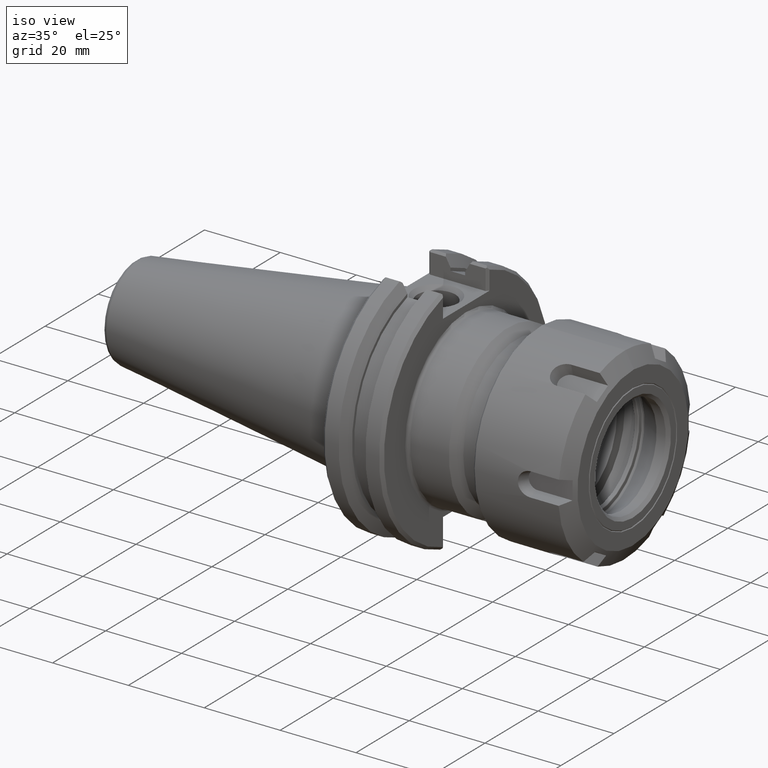
[diagram: clean part render]
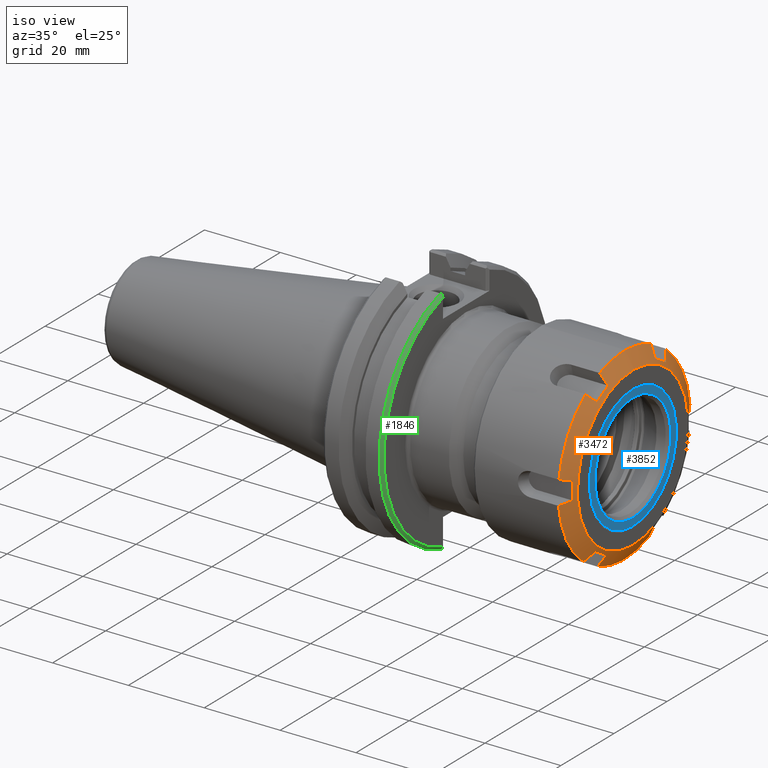
[diagram: same view with three faces highlighted in distinct colors, each labeled with its STEP entity id]
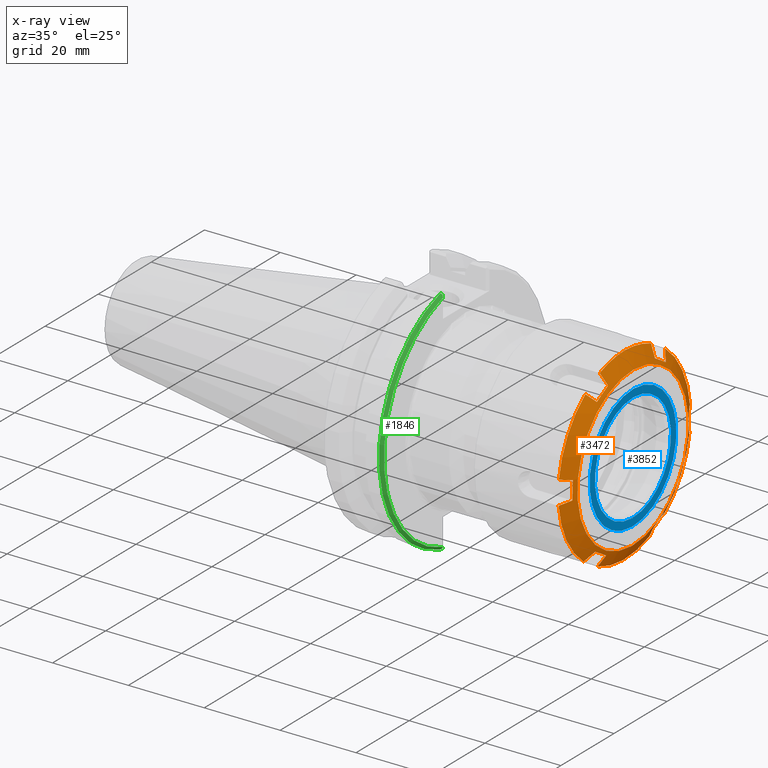
[diagram: x-ray of the same camera — body ghosted, the three highlighted faces saturated]
A machine part, iso view with three faces highlighted in distinct colors.
The next image is the same camera in x-ray (body ghosted, the three faces saturated) — at least one of them is partly hidden behind the body in this view.
Their STEP definitions:

[orange] entity #3472 — the highlighted conical surface has half-angle 60 deg.
#2420=CARTESIAN_POINT('',(0.024252481057824,0.791781847254617,-0.348593612044263));
#2421=VERTEX_POINT('',#2420);
#2422=CARTESIAN_POINT('',(0.024252481057824,0.697781847254617,-0.511406387955738));
#2423=VERTEX_POINT('',#2422);
#2424=CARTESIAN_POINT('',(0.024252481057824,0.791781847254617,-0.348593612044263));
#2425=CARTESIAN_POINT('',(0.018355662766565,0.744781847254617,-0.43));
#2426=CARTESIAN_POINT('',(0.024252481057824,0.697781847254617,-0.511406387955738));
#2434=(BOUNDED_CURVE()B_SPLINE_CURVE(2,(#2424,#2425,#2426),.UNSPECIFIED.,.F.,.U.)B_SPLINE_CURVE_WITH_KNOTS((3,3),(0.943718480474019,1.458220984319659),.UNSPECIFIED.)CURVE()GEOMETRIC_REPRESENTATION_ITEM()RATIONAL_B_SPLINE_CURVE((1.066011589984009,1.072360503039249,1.066011589984008))REPRESENTATION_ITEM(''));
#2435=EDGE_CURVE('',#2421,#2423,#2434,.T.);
#2468=CARTESIAN_POINT('',(0.09,0.78036723379402,-0.591158168699942));
#2469=VERTEX_POINT('',#2468);
#2470=CARTESIAN_POINT('',(0.024252481057824,0.697781847254617,-0.511406387955737));
#2471=CARTESIAN_POINT('',(0.05506296147415,0.73652463806791,-0.548819866148833));
#2472=CARTESIAN_POINT('',(0.09,0.78036723379402,-0.591158168699942));
#2480=(BOUNDED_CURVE()B_SPLINE_CURVE(2,(#2470,#2471,#2472),.UNSPECIFIED.,.F.,.U.)B_SPLINE_CURVE_WITH_KNOTS((3,3),(0.0,0.336043340882399),.UNSPECIFIED.)CURVE()GEOMETRIC_REPRESENTATION_ITEM()RATIONAL_B_SPLINE_CURVE((1.0,1.001943540660479,1.0))REPRESENTATION_ITEM(''));
#2481=EDGE_CURVE('',#2423,#2469,#2480,.T.);
#2545=CARTESIAN_POINT('',(0.09,0.902141608645846,-0.380238764396641));
#2546=VERTEX_POINT('',#2545);
#2547=CARTESIAN_POINT('',(0.09,0.902141608645847,-0.380238764396641));
#2548=CARTESIAN_POINT('',(0.055062961473286,0.843554265218969,-0.363439114005117));
#2549=CARTESIAN_POINT('',(0.024252481057824,0.791781847254617,-0.348593612044263));
#2557=(BOUNDED_CURVE()B_SPLINE_CURVE(2,(#2547,#2548,#2549),.UNSPECIFIED.,.F.,.U.)B_SPLINE_CURVE_WITH_KNOTS((3,3),(0.0,0.336043340882399),.UNSPECIFIED.)CURVE()GEOMETRIC_REPRESENTATION_ITEM()RATIONAL_B_SPLINE_CURVE((1.0,1.001943540653427,1.0))REPRESENTATION_ITEM(''));
#2558=EDGE_CURVE('',#2546,#2421,#2557,.T.);
#2576=CARTESIAN_POINT('',(0.024252481057824,0.094,-0.86));
#2577=VERTEX_POINT('',#2576);
#2578=CARTESIAN_POINT('',(0.024252481057824,-0.094,-0.86));
#2579=VERTEX_POINT('',#2578);
#2580=CARTESIAN_POINT('',(0.024252481057824,0.094,-0.86));
#2581=CARTESIAN_POINT('',(0.018355662766565,-1.202013E-016,-0.86));
#2582=CARTESIAN_POINT('',(0.024252481057824,-0.094,-0.86));
#2590=(BOUNDED_CURVE()B_SPLINE_CURVE(2,(#2580,#2581,#2582),.UNSPECIFIED.,.F.,.U.)B_SPLINE_CURVE_WITH_KNOTS((3,3),(0.943718480474019,1.45822098431966),.UNSPECIFIED.)CURVE()GEOMETRIC_REPRESENTATION_ITEM()RATIONAL_B_SPLINE_CURVE((1.066011589984008,1.072360503039249,1.066011589984008))REPRESENTATION_ITEM(''));
#2591=EDGE_CURVE('',#2577,#2579,#2590,.T.);
#2624=CARTESIAN_POINT('',(0.09,-0.121774374851827,-0.971396933096583));
#2625=VERTEX_POINT('',#2624);
#2626=CARTESIAN_POINT('',(0.024252481057824,-0.094,-0.86));
#2627=CARTESIAN_POINT('',(0.055062961466432,-0.107029627149249,-0.912258980141287));
#2628=CARTESIAN_POINT('',(0.09,-0.121774374851827,-0.971396933096583));
#2636=(BOUNDED_CURVE()B_SPLINE_CURVE(2,(#2626,#2627,#2628),.UNSPECIFIED.,.F.,.U.)B_SPLINE_CURVE_WITH_KNOTS((3,3),(0.0,0.336043340882399),.UNSPECIFIED.)CURVE()GEOMETRIC_REPRESENTATION_ITEM()RATIONAL_B_SPLINE_CURVE((1.0,1.001943540649777,1.0))REPRESENTATION_ITEM(''));
#2637=EDGE_CURVE('',#2579,#2625,#2636,.T.);
#2701=CARTESIAN_POINT('',(0.09,0.121774374851826,-0.971396933096583));
#2702=VERTEX_POINT('',#2701);
#2703=CARTESIAN_POINT('',(0.09,0.121774374851826,-0.971396933096583));
#2704=CARTESIAN_POINT('',(0.055062961477335,0.107029627153855,-0.912258980159763));
#2705=CARTESIAN_POINT('',(0.024252481057824,0.094,-0.86));
#2713=(BOUNDED_CURVE()B_SPLINE_CURVE(2,(#2703,#2704,#2705),.UNSPECIFIED.,.F.,.U.)B_SPLINE_CURVE_WITH_KNOTS((3,3),(0.0,0.336043340882399),.UNSPECIFIED.)CURVE()GEOMETRIC_REPRESENTATION_ITEM()RATIONAL_B_SPLINE_CURVE((1.0,1.001943540613379,1.0))REPRESENTATION_ITEM(''));
#2714=EDGE_CURVE('',#2702,#2577,#2713,.T.);
#2732=CARTESIAN_POINT('',(0.024252481057824,-0.697781847254617,-0.511406387955737));
#2733=VERTEX_POINT('',#2732);
#2734=CARTESIAN_POINT('',(0.024252481057824,-0.791781847254618,-0.348593612044263));
#2735=VERTEX_POINT('',#2734);
#2736=CARTESIAN_POINT('',(0.024252481057824,-0.697781847254617,-0.511406387955737));
#2737=CARTESIAN_POINT('',(0.018355662766565,-0.744781847254617,-0.43));
#2738=CARTESIAN_POINT('',(0.024252481057824,-0.791781847254618,-0.348593612044263));
#2746=(BOUNDED_CURVE()B_SPLINE_CURVE(2,(#2736,#2737,#2738),.UNSPECIFIED.,.F.,.U.)B_SPLINE_CURVE_WITH_KNOTS((3,3),(0.94371848047402,1.45822098431966),.UNSPECIFIED.)CURVE()GEOMETRIC_REPRESENTATION_ITEM()RATIONAL_B_SPLINE_CURVE((1.066011589984008,1.072360503039249,1.066011589984008))REPRESENTATION_ITEM(''));
#2747=EDGE_CURVE('',#2733,#2735,#2746,.T.);
#2780=CARTESIAN_POINT('',(0.09,-0.902141608645847,-0.380238764396641));
#2781=VERTEX_POINT('',#2780);
#2782=CARTESIAN_POINT('',(0.024252481057824,-0.791781847254618,-0.348593612044263));
#2783=CARTESIAN_POINT('',(0.055062961460595,-0.843554265197666,-0.363439113999008));
#2784=CARTESIAN_POINT('',(0.09,-0.902141608645847,-0.380238764396641));
#2792=(BOUNDED_CURVE()B_SPLINE_CURVE(2,(#2782,#2783,#2784),.UNSPECIFIED.,.F.,.U.)B_SPLINE_CURVE_WITH_KNOTS((3,3),(0.0,0.336043340882399),.UNSPECIFIED.)CURVE()GEOMETRIC_REPRESENTATION_ITEM()RATIONAL_B_SPLINE_CURVE((1.0,1.001943540685767,1.0))REPRESENTATION_ITEM(''));
#2793=EDGE_CURVE('',#2735,#2781,#2792,.T.);
#2857=CARTESIAN_POINT('',(0.09,-0.78036723379402,-0.591158168699942));
#2858=VERTEX_POINT('',#2857);
#2859=CARTESIAN_POINT('',(0.09,-0.780367233794021,-0.591158168699942));
#2860=CARTESIAN_POINT('',(0.055062961471766,-0.736524638064915,-0.54881986614594));
#2861=CARTESIAN_POINT('',(0.024252481057824,-0.697781847254618,-0.511406387955737));
#2869=(BOUNDED_CURVE()B_SPLINE_CURVE(2,(#2859,#2860,#2861),.UNSPECIFIED.,.F.,.U.)B_SPLINE_CURVE_WITH_KNOTS((3,3),(0.0,0.336043340882399),.UNSPECIFIED.)CURVE()GEOMETRIC_REPRESENTATION_ITEM()RATIONAL_B_SPLINE_CURVE((1.0,1.001943540646954,1.0))REPRESENTATION_ITEM(''));
#2870=EDGE_CURVE('',#2858,#2733,#2869,.T.);
#2888=CARTESIAN_POINT('',(0.024252481057824,-0.791781847254617,0.348593612044263));
#2889=VERTEX_POINT('',#2888);
#2890=CARTESIAN_POINT('',(0.024252481057824,-0.697781847254617,0.511406387955737));
#2891=VERTEX_POINT('',#2890);
#2892=CARTESIAN_POINT('',(0.024252481057824,-0.791781847254617,0.348593612044263));
#2893=CARTESIAN_POINT('',(0.018355662766565,-0.744781847254617,0.43));
#2894=CARTESIAN_POINT('',(0.024252481057824,-0.697781847254617,0.511406387955737));
#2902=(BOUNDED_CURVE()B_SPLINE_CURVE(2,(#2892,#2893,#2894),.UNSPECIFIED.,.F.,.U.)B_SPLINE_CURVE_WITH_KNOTS((3,3),(0.943718480474019,1.458220984319659),.UNSPECIFIED.)CURVE()GEOMETRIC_REPRESENTATION_ITEM()RATIONAL_B_SPLINE_CURVE((1.066011589984008,1.072360503039248,1.066011589984008))REPRESENTATION_ITEM(''));
#2903=EDGE_CURVE('',#2889,#2891,#2902,.T.);
#2936=CARTESIAN_POINT('',(0.09,-0.78036723379402,0.591158168699942));
#2937=VERTEX_POINT('',#2936);
#2938=CARTESIAN_POINT('',(0.024252481057824,-0.697781847254617,0.511406387955737));
#2939=CARTESIAN_POINT('',(0.0550629614682,-0.736524638060436,0.548819866141615));
#2940=CARTESIAN_POINT('',(0.09,-0.78036723379402,0.591158168699942));
#2948=(BOUNDED_CURVE()B_SPLINE_CURVE(2,(#2938,#2939,#2940),.UNSPECIFIED.,.F.,.U.)B_SPLINE_CURVE_WITH_KNOTS((3,3),(0.0,0.336043340882399),.UNSPECIFIED.)CURVE()GEOMETRIC_REPRESENTATION_ITEM()RATIONAL_B_SPLINE_CURVE((1.0,1.001943540656767,1.0))REPRESENTATION_ITEM(''));
#2949=EDGE_CURVE('',#2891,#2937,#2948,.T.);
#3013=CARTESIAN_POINT('',(0.09,-0.902141608645847,0.380238764396641));
#3014=VERTEX_POINT('',#3013);
#3015=CARTESIAN_POINT('',(0.09,-0.902141608645847,0.380238764396641));
#3016=CARTESIAN_POINT('',(0.055062961464766,-0.843554265204668,0.363439114001016));
#3017=CARTESIAN_POINT('',(0.024252481057824,-0.791781847254617,0.348593612044263));
#3025=(BOUNDED_CURVE()B_SPLINE_CURVE(2,(#3015,#3016,#3017),.UNSPECIFIED.,.F.,.U.)B_SPLINE_CURVE_WITH_KNOTS((3,3),(0.0,0.336043340882399),.UNSPECIFIED.)CURVE()GEOMETRIC_REPRESENTATION_ITEM()RATIONAL_B_SPLINE_CURVE((1.0,1.001943540699981,1.0))REPRESENTATION_ITEM(''));
#3026=EDGE_CURVE('',#3014,#2889,#3025,.T.);
#3044=CARTESIAN_POINT('',(0.024252481057824,0.697781847254618,0.511406387955737));
#3045=VERTEX_POINT('',#3044);
#3046=CARTESIAN_POINT('',(0.024252481057824,0.791781847254618,0.348593612044262));
#3047=VERTEX_POINT('',#3046);
#3048=CARTESIAN_POINT('',(0.024252481057824,0.697781847254618,0.511406387955737));
#3049=CARTESIAN_POINT('',(0.018355662766565,0.744781847254618,0.43));
#3050=CARTESIAN_POINT('',(0.024252481057824,0.791781847254618,0.348593612044262));
#3058=(BOUNDED_CURVE()B_SPLINE_CURVE(2,(#3048,#3049,#3050),.UNSPECIFIED.,.F.,.U.)B_SPLINE_CURVE_WITH_KNOTS((3,3),(0.94371848047402,1.458220984319659),.UNSPECIFIED.)CURVE()GEOMETRIC_REPRESENTATION_ITEM()RATIONAL_B_SPLINE_CURVE((1.066011589984007,1.072360503039247,1.066011589984007))REPRESENTATION_ITEM(''));
#3059=EDGE_CURVE('',#3045,#3047,#3058,.T.);
#3092=CARTESIAN_POINT('',(0.09,0.902141608645847,0.38023876439664));
#3093=VERTEX_POINT('',#3092);
#3094=CARTESIAN_POINT('',(0.024252481057824,0.791781847254618,0.348593612044262));
#3095=CARTESIAN_POINT('',(0.05506296147389,0.843554265219982,0.363439114005407));
#3096=CARTESIAN_POINT('',(0.09,0.902141608645847,0.38023876439664));
#3104=(BOUNDED_CURVE()B_SPLINE_CURVE(2,(#3094,#3095,#3096),.UNSPECIFIED.,.F.,.U.)B_SPLINE_CURVE_WITH_KNOTS((3,3),(0.0,0.336043340882399),.UNSPECIFIED.)CURVE()GEOMETRIC_REPRESENTATION_ITEM()RATIONAL_B_SPLINE_CURVE((1.0,1.001943540664179,1.0))REPRESENTATION_ITEM(''));
#3105=EDGE_CURVE('',#3047,#3093,#3104,.T.);
#3169=CARTESIAN_POINT('',(0.09,0.780367233794021,0.591158168699941));
#3170=VERTEX_POINT('',#3169);
#3171=CARTESIAN_POINT('',(0.09,0.780367233794021,0.591158168699941));
#3172=CARTESIAN_POINT('',(0.055062961468214,0.736524638060454,0.548819866141632));
#3173=CARTESIAN_POINT('',(0.024252481057824,0.697781847254618,0.511406387955737));
#3181=(BOUNDED_CURVE()B_SPLINE_CURVE(2,(#3171,#3172,#3173),.UNSPECIFIED.,.F.,.U.)B_SPLINE_CURVE_WITH_KNOTS((3,3),(0.0,0.336043340882399),.UNSPECIFIED.)CURVE()GEOMETRIC_REPRESENTATION_ITEM()RATIONAL_B_SPLINE_CURVE((1.0,1.001943540675198,1.0))REPRESENTATION_ITEM(''));
#3182=EDGE_CURVE('',#3170,#3045,#3181,.T.);
#3214=CARTESIAN_POINT('',(0.09,0.0,0.0));
#3215=DIRECTION('',(1.0,0.0,0.0));
#3216=DIRECTION('',(0.0,1.0,0.0));
#3217=AXIS2_PLACEMENT_3D('',#3214,#3215,#3216);
#3218=CIRCLE('',#3217,0.979);
#3219=EDGE_CURVE('',#2546,#3093,#3218,.T.);
#3224=CARTESIAN_POINT('',(0.09,0.121774374851826,0.971396933096583));
#3225=VERTEX_POINT('',#3224);
#3226=CARTESIAN_POINT('',(0.09,0.0,0.0));
#3227=DIRECTION('',(1.0,0.0,0.0));
#3228=DIRECTION('',(0.0,1.0,0.0));
#3229=AXIS2_PLACEMENT_3D('',#3226,#3227,#3228);
#3230=CIRCLE('',#3229,0.979);
#3231=EDGE_CURVE('',#3170,#3225,#3230,.T.);
#3264=CARTESIAN_POINT('',(0.09,-0.121774374851826,0.971396933096583));
#3265=VERTEX_POINT('',#3264);
#3272=CARTESIAN_POINT('',(0.09,0.0,0.0));
#3273=DIRECTION('',(1.0,0.0,0.0));
#3274=DIRECTION('',(0.0,1.0,0.0));
#3275=AXIS2_PLACEMENT_3D('',#3272,#3273,#3274);
#3276=CIRCLE('',#3275,0.979);
#3277=EDGE_CURVE('',#3265,#2937,#3276,.T.);
#3282=CARTESIAN_POINT('',(0.09,0.0,0.0));
#3283=DIRECTION('',(1.0,0.0,0.0));
#3284=DIRECTION('',(0.0,1.0,0.0));
#3285=AXIS2_PLACEMENT_3D('',#3282,#3283,#3284);
#3286=CIRCLE('',#3285,0.979);
#3287=EDGE_CURVE('',#3014,#2781,#3286,.T.);
#3292=CARTESIAN_POINT('',(0.09,0.0,0.0));
#3293=DIRECTION('',(1.0,0.0,0.0));
#3294=DIRECTION('',(0.0,1.0,0.0));
#3295=AXIS2_PLACEMENT_3D('',#3292,#3293,#3294);
#3296=CIRCLE('',#3295,0.979);
#3297=EDGE_CURVE('',#2858,#2625,#3296,.T.);
#3302=CARTESIAN_POINT('',(0.09,0.0,0.0));
#3303=DIRECTION('',(1.0,0.0,0.0));
#3304=DIRECTION('',(0.0,1.0,0.0));
#3305=AXIS2_PLACEMENT_3D('',#3302,#3303,#3304);
#3306=CIRCLE('',#3305,0.979);
#3307=EDGE_CURVE('',#2702,#2469,#3306,.T.);
#3317=CARTESIAN_POINT('',(0.024252481057824,-0.094,0.86));
#3318=VERTEX_POINT('',#3317);
#3319=CARTESIAN_POINT('',(0.024252481057824,0.094,0.86));
#3320=VERTEX_POINT('',#3319);
#3321=CARTESIAN_POINT('',(0.024252481057824,-0.094,0.86));
#3322=CARTESIAN_POINT('',(0.018355662766565,0.0,0.86));
#3323=CARTESIAN_POINT('',(0.024252481057824,0.094,0.86));
#3331=(BOUNDED_CURVE()B_SPLINE_CURVE(2,(#3321,#3322,#3323),.UNSPECIFIED.,.F.,.U.)B_SPLINE_CURVE_WITH_KNOTS((3,3),(0.943718480474019,1.458220984319659),.UNSPECIFIED.)CURVE()GEOMETRIC_REPRESENTATION_ITEM()RATIONAL_B_SPLINE_CURVE((1.066011589984008,1.072360503039248,1.066011589984008))REPRESENTATION_ITEM(''));
#3332=EDGE_CURVE('',#3318,#3320,#3331,.T.);
#3365=CARTESIAN_POINT('',(0.024252481057824,0.094,0.86));
#3366=CARTESIAN_POINT('',(0.055062961472615,0.107029627151861,0.912258980151765));
#3367=CARTESIAN_POINT('',(0.09,0.121774374851826,0.971396933096583));
#3375=(BOUNDED_CURVE()B_SPLINE_CURVE(2,(#3365,#3366,#3367),.UNSPECIFIED.,.F.,.U.)B_SPLINE_CURVE_WITH_KNOTS((3,3),(0.13215054751189,0.460145776066875),.UNSPECIFIED.)CURVE()GEOMETRIC_REPRESENTATION_ITEM()RATIONAL_B_SPLINE_CURVE((1.001567099590146,1.002728305976245,1.0))REPRESENTATION_ITEM(''));
#3376=EDGE_CURVE('',#3320,#3225,#3375,.T.);
#3411=CARTESIAN_POINT('',(0.09,-0.121774374851826,0.971396933096583));
#3412=CARTESIAN_POINT('',(0.055062961472778,-0.10702962715193,0.912258980152042));
#3413=CARTESIAN_POINT('',(0.024252481057824,-0.094,0.86));
#3421=(BOUNDED_CURVE()B_SPLINE_CURVE(2,(#3411,#3412,#3413),.UNSPECIFIED.,.F.,.U.)B_SPLINE_CURVE_WITH_KNOTS((3,3),(0.0,0.327995228554664),.UNSPECIFIED.)CURVE()GEOMETRIC_REPRESENTATION_ITEM()RATIONAL_B_SPLINE_CURVE((1.0,1.002728305968636,1.001567099585778))REPRESENTATION_ITEM(''));
#3422=EDGE_CURVE('',#3265,#3318,#3421,.T.);
#3430=CARTESIAN_POINT('',(0.045,0.0,0.0));
#3431=DIRECTION('',(1.0,0.0,0.0));
#3432=DIRECTION('',(0.0,1.0,0.0));
#3433=AXIS2_PLACEMENT_3D('',#3430,#3431,#3432);
#3434=CONICAL_SURFACE('',#3433,0.901057713659401,60.000000000000043);
#3435=ORIENTED_EDGE('',*,*,#2481,.T.);
#3436=ORIENTED_EDGE('',*,*,#3307,.F.);
#3437=ORIENTED_EDGE('',*,*,#2714,.T.);
#3438=ORIENTED_EDGE('',*,*,#2591,.T.);
#3439=ORIENTED_EDGE('',*,*,#2637,.T.);
#3440=ORIENTED_EDGE('',*,*,#3297,.F.);
#3441=ORIENTED_EDGE('',*,*,#2870,.T.);
#3442=ORIENTED_EDGE('',*,*,#2747,.T.);
#3443=ORIENTED_EDGE('',*,*,#2793,.T.);
#3444=ORIENTED_EDGE('',*,*,#3287,.F.);
#3445=ORIENTED_EDGE('',*,*,#3026,.T.);
#3446=ORIENTED_EDGE('',*,*,#2903,.T.);
#3447=ORIENTED_EDGE('',*,*,#2949,.T.);
#3448=ORIENTED_EDGE('',*,*,#3277,.F.);
#3449=ORIENTED_EDGE('',*,*,#3422,.T.);
#3450=ORIENTED_EDGE('',*,*,#3332,.T.);
#3451=ORIENTED_EDGE('',*,*,#3376,.T.);
#3452=ORIENTED_EDGE('',*,*,#3231,.F.);
#3453=ORIENTED_EDGE('',*,*,#3182,.T.);
#3454=ORIENTED_EDGE('',*,*,#3059,.T.);
#3455=ORIENTED_EDGE('',*,*,#3105,.T.);
#3456=ORIENTED_EDGE('',*,*,#3219,.F.);
#3457=ORIENTED_EDGE('',*,*,#2558,.T.);
#3458=ORIENTED_EDGE('',*,*,#2435,.T.);
#3459=EDGE_LOOP('',(#3435,#3436,#3437,#3438,#3439,#3440,#3441,#3442,#3443,#3444,#3445,#3446,#3447,#3448,#3449,#3450,#3451,#3452,#3453,#3454,#3455,#3456,#3457,#3458));
#3460=FACE_OUTER_BOUND('',#3459,.T.);
#3461=CARTESIAN_POINT('',(-2.526959E-016,0.823115427318801,0.0));
#3462=VERTEX_POINT('',#3461);
#3463=CARTESIAN_POINT('',(-1.748383E-016,0.0,0.0));
#3464=DIRECTION('',(1.0,0.0,0.0));
#3465=DIRECTION('',(0.0,1.0,0.0));
#3466=AXIS2_PLACEMENT_3D('',#3463,#3464,#3465);
#3467=CIRCLE('',#3466,0.823115427318801);
#3468=EDGE_CURVE('',#3462,#3462,#3467,.T.);
#3469=ORIENTED_EDGE('',*,*,#3468,.T.);
#3470=EDGE_LOOP('',(#3469));
#3471=FACE_BOUND('',#3470,.T.);
#3472=ADVANCED_FACE('',(#3460,#3471),#3434,.T.);

[blue] entity #3852 — the highlighted planar face has unit normal (1, -0, 0).
#3818=CARTESIAN_POINT('',(-1.727894E-016,0.5635,0.0));
#3819=VERTEX_POINT('',#3818);
#3820=CARTESIAN_POINT('',(-1.748383E-016,0.0,0.0));
#3821=DIRECTION('',(1.0,0.0,0.0));
#3822=DIRECTION('',(0.0,1.0,0.0));
#3823=AXIS2_PLACEMENT_3D('',#3820,#3821,#3822);
#3824=CIRCLE('',#3823,0.5635);
#3825=EDGE_CURVE('',#3819,#3819,#3824,.T.);
#3833=CARTESIAN_POINT('',(-1.847412E-016,0.60325,0.0));
#3834=DIRECTION('',(-1.0,0.0,0.0));
#3835=DIRECTION('',(0.0,0.0,1.0));
#3836=AXIS2_PLACEMENT_3D('',#3833,#3834,#3835);
#3837=PLANE('',#3836);
#3838=CARTESIAN_POINT('',(-1.966931E-016,0.643,0.0));
#3839=VERTEX_POINT('',#3838);
#3840=CARTESIAN_POINT('',(-1.748383E-016,0.0,0.0));
#3841=DIRECTION('',(1.0,0.0,0.0));
#3842=DIRECTION('',(0.0,1.0,0.0));
#3843=AXIS2_PLACEMENT_3D('',#3840,#3841,#3842);
#3844=CIRCLE('',#3843,0.643);
#3845=EDGE_CURVE('',#3839,#3839,#3844,.T.);
#3846=ORIENTED_EDGE('',*,*,#3845,.F.);
#3847=EDGE_LOOP('',(#3846));
#3848=FACE_OUTER_BOUND('',#3847,.T.);
#3849=ORIENTED_EDGE('',*,*,#3825,.T.);
#3850=EDGE_LOOP('',(#3849));
#3851=FACE_BOUND('',#3850,.T.);
#3852=ADVANCED_FACE('',(#3848,#3851),#3837,.T.);

[green] entity #1846 — the highlighted conical surface has half-angle 45 deg.
#510=CARTESIAN_POINT('',(0.734580963410369,-0.329580963410879,-1.190645448706214));
#511=VERTEX_POINT('',#510);
#536=CARTESIAN_POINT('',(0.75,-0.34500000000051,-1.170202973846695));
#537=VERTEX_POINT('',#536);
#544=CARTESIAN_POINT('',(0.75,-0.34500000000051,-1.170202973846694));
#545=CARTESIAN_POINT('',(0.742357238059555,-0.337357238060065,-1.180424211276461));
#546=CARTESIAN_POINT('',(0.734580963410369,-0.329580963410879,-1.190645448706214));
#547=B_SPLINE_CURVE_WITH_KNOTS('',2,(#544,#545,#546),.UNSPECIFIED.,.F.,.U.,(3,3),(0.0,0.076246272005436),.UNSPECIFIED.);
#548=EDGE_CURVE('',#537,#511,#547,.T.);
#652=CARTESIAN_POINT('',(0.719999999999696,-0.344098106798513,-1.201705659842575));
#653=VERTEX_POINT('',#652);
#654=CARTESIAN_POINT('',(0.734580963410369,-0.329580963410879,-1.190645448706214));
#655=CARTESIAN_POINT('',(0.727357487653891,-0.336796951956238,-1.196143111348083));
#656=CARTESIAN_POINT('',(0.719999999999391,-0.344098106798865,-1.201705659842791));
#664=(BOUNDED_CURVE()B_SPLINE_CURVE(2,(#654,#655,#656),.UNSPECIFIED.,.F.,.U.)B_SPLINE_CURVE_WITH_KNOTS((3,3),(0.063468611320485,0.122348180136172),.UNSPECIFIED.)CURVE()GEOMETRIC_REPRESENTATION_ITEM()RATIONAL_B_SPLINE_CURVE((1.000058124800819,1.000056023469342,1.0))REPRESENTATION_ITEM(''));
#665=EDGE_CURVE('',#511,#653,#664,.T.);
#769=CARTESIAN_POINT('',(0.75,-0.345000000000421,1.170202973846721));
#770=VERTEX_POINT('',#769);
#777=CARTESIAN_POINT('',(0.75,0.0,0.0));
#778=DIRECTION('',(-1.0,0.0,0.0));
#779=DIRECTION('',(0.0,-1.0,0.0));
#780=AXIS2_PLACEMENT_3D('',#777,#778,#779);
#781=CIRCLE('',#780,1.22);
#782=EDGE_CURVE('',#537,#770,#781,.T.);
#1409=CARTESIAN_POINT('',(0.719999999999696,-0.344098106798553,1.201705659842564));
#1410=VERTEX_POINT('',#1409);
#1411=CARTESIAN_POINT('',(0.719999999999696,0.0,0.0));
#1412=DIRECTION('',(1.0,-2.436770E-013,0.0));
#1413=DIRECTION('',(-2.436770E-013,-1.0,0.0));
#1414=AXIS2_PLACEMENT_3D('',#1411,#1412,#1413);
#1415=CIRCLE('',#1414,1.25);
#1416=EDGE_CURVE('',#1410,#653,#1415,.T.);
#1433=CARTESIAN_POINT('',(0.734580963410396,-0.329580963410817,1.190645448706203));
#1434=VERTEX_POINT('',#1433);
#1451=CARTESIAN_POINT('',(0.719999999999391,-0.344098106798855,1.201705659842794));
#1452=CARTESIAN_POINT('',(0.727357487653935,-0.336796951956171,1.196143111348056));
#1453=CARTESIAN_POINT('',(0.734580963410396,-0.329580963410817,1.190645448706203));
#1461=(BOUNDED_CURVE()B_SPLINE_CURVE(2,(#1451,#1452,#1453),.UNSPECIFIED.,.F.,.U.)B_SPLINE_CURVE_WITH_KNOTS((3,3),(0.0,0.058879568815701),.UNSPECIFIED.)CURVE()GEOMETRIC_REPRESENTATION_ITEM()RATIONAL_B_SPLINE_CURVE((1.0,1.000056023471403,1.000058124802958))REPRESENTATION_ITEM(''));
#1462=EDGE_CURVE('',#1410,#1434,#1461,.T.);
#1821=CARTESIAN_POINT('',(0.734580963410396,-0.329580963410817,1.190645448706203));
#1822=CARTESIAN_POINT('',(0.742357238059572,-0.337357238059994,1.180424211276463));
#1823=CARTESIAN_POINT('',(0.75,-0.345000000000422,1.170202973846721));
#1824=B_SPLINE_CURVE_WITH_KNOTS('',2,(#1821,#1822,#1823),.UNSPECIFIED.,.F.,.U.,(3,3),(0.070916837735867,0.147163109741206),.UNSPECIFIED.);
#1825=EDGE_CURVE('',#1434,#770,#1824,.T.);
#1833=CARTESIAN_POINT('',(0.734999999999848,0.0,0.0));
#1834=DIRECTION('',(-1.0,0.0,0.0));
#1835=DIRECTION('',(-1.233183E-013,-1.0,0.0));
#1836=AXIS2_PLACEMENT_3D('',#1833,#1834,#1835);
#1837=CONICAL_SURFACE('',#1836,1.235,45.000000000000099);
#1838=ORIENTED_EDGE('',*,*,#548,.F.);
#1839=ORIENTED_EDGE('',*,*,#782,.T.);
#1840=ORIENTED_EDGE('',*,*,#1825,.F.);
#1841=ORIENTED_EDGE('',*,*,#1462,.F.);
#1842=ORIENTED_EDGE('',*,*,#1416,.T.);
#1843=ORIENTED_EDGE('',*,*,#665,.F.);
#1844=EDGE_LOOP('',(#1838,#1839,#1840,#1841,#1842,#1843));
#1845=FACE_OUTER_BOUND('',#1844,.T.);
#1846=ADVANCED_FACE('',(#1845),#1837,.T.);